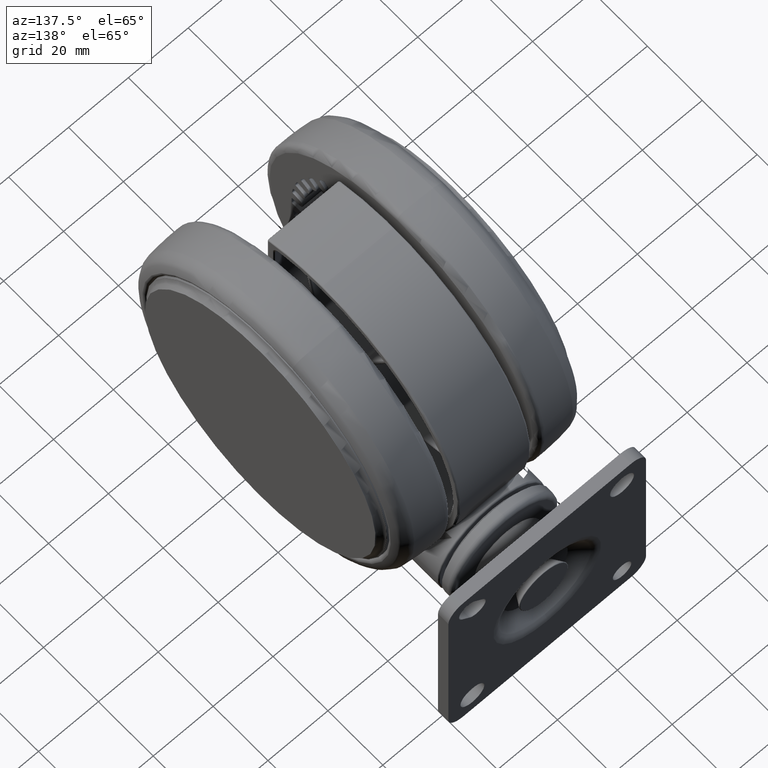
[diagram: clean part render]
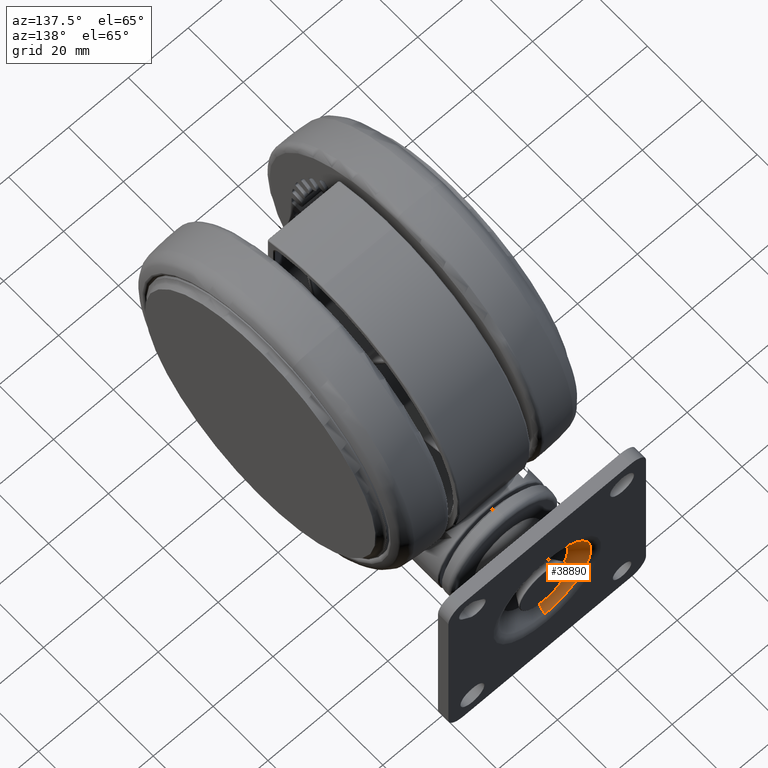
[diagram: same view with one face highlighted and labeled with its STEP entity id]
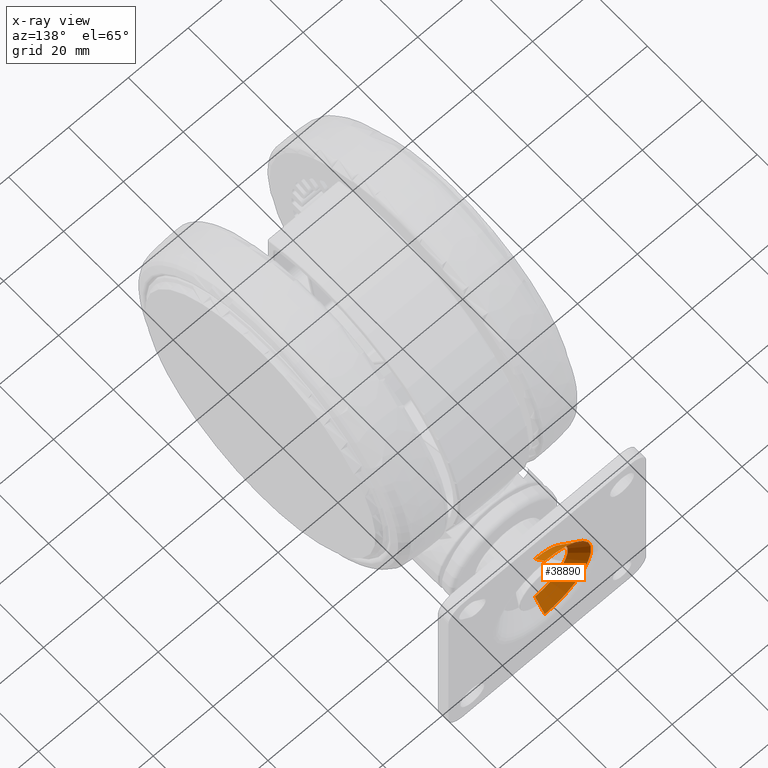
[diagram: x-ray of the same camera — body ghosted, the highlighted face saturated]
A machine part, auxiliary view. The second image highlights one B-rep face of the part: STEP entity #38890.
The next image is the same camera in x-ray: the body ghosted, the highlighted face saturated — about 0% of this face is hidden behind the body in this view.
In plain terms, the highlighted conical surface has half-angle 51.116 deg.
Its self-contained STEP definition (entity closure, byte-faithful):
#2526 = DIRECTION ( 'NONE',  ( 0.6295994207813299100, 0.7769199246716574900, -4.321060395469776300E-017 ) ) ;
#3994 = CARTESIAN_POINT ( 'NONE',  ( 19.95107135689636400, 73.93503246704084100, -32.59999999999990200 ) ) ;
#4444 = CIRCLE ( 'NONE', #41386, 11.00000000000000200 ) ;
#5740 = DIRECTION ( 'NONE',  ( -0.2095320203294542000, 0.9778017858731172800, 3.399077683617266600E-033 ) ) ;
#7235 = CARTESIAN_POINT ( 'NONE',  ( 35.08835106306554500, 77.17878272905694800, -32.59999999999990200 ) ) ;
#8417 = EDGE_LOOP ( 'NONE', ( #26462, #15054, #62826, #73336 ) ) ;
#8828 = LINE ( 'NONE', #69438, #67313 ) ;
#9079 = AXIS2_PLACEMENT_3D ( 'NONE', #3994, #46204, #10092 ) ;
#10092 = DIRECTION ( 'NONE',  ( -0.9778017858731163900, -0.2095320203294575000, 0.0000000000000000000 ) ) ;
#11847 = DIRECTION ( 'NONE',  ( 0.9778017858731171700, 0.2095320203294542300, 0.0000000000000000000 ) ) ;
#15054 = ORIENTED_EDGE ( 'NONE', *, *, #52049, .F. ) ;
#16361 = FACE_OUTER_BOUND ( 'NONE', #8417, .T. ) ;
#20510 = VERTEX_POINT ( 'NONE', #77944 ) ;
#20890 = CARTESIAN_POINT ( 'NONE',  ( 20.70824719430930100, 70.40159693352077900, -32.59999999999990200 ) ) ;
#26462 = ORIENTED_EDGE ( 'NONE', *, *, #31160, .F. ) ;
#26910 = DIRECTION ( 'NONE',  ( 0.9778017858731171700, 0.2095320203294536400, 0.0000000000000000000 ) ) ;
#27572 = AXIS2_PLACEMENT_3D ( 'NONE', #47940, #5740, #11847 ) ;
#27963 = CIRCLE ( 'NONE', #9079, 15.48092867579747900 ) ;
#29244 = VERTEX_POINT ( 'NONE', #7235 ) ;
#31160 = EDGE_CURVE ( 'NONE', #20510, #44118, #8828, .T. ) ;
#33206 = DIRECTION ( 'NONE',  ( -0.8926678995104565500, 0.4507150110475457400, -5.211749976610404500E-017 ) ) ;
#38669 = VECTOR ( 'NONE', #2526, 1000.000000000000100 ) ;
#38890 = ADVANCED_FACE ( 'NONE', ( #16361 ), #76817, .F. ) ;
#41386 = AXIS2_PLACEMENT_3D ( 'NONE', #20890, #63108, #26910 ) ;
#43771 = EDGE_CURVE ( 'NONE', #29244, #44118, #27963, .T. ) ;
#44118 = VERTEX_POINT ( 'NONE', #56201 ) ;
#46204 = DIRECTION ( 'NONE',  ( -0.2095320203294576100, 0.9778017858731165000, 1.972152263052530000E-031 ) ) ;
#47940 = CARTESIAN_POINT ( 'NONE',  ( 19.76535310282674400, 74.80170496994986700, -32.59999999999990200 ) ) ;
#48667 = CARTESIAN_POINT ( 'NONE',  ( 31.46406683891359200, 72.70644915714476000, -32.59999999999990200 ) ) ;
#52049 = EDGE_CURVE ( 'NONE', #60912, #20510, #4444, .T. ) ;
#56201 = CARTESIAN_POINT ( 'NONE',  ( 4.813791650727317500, 70.69128220502477700, -32.59999999999990200 ) ) ;
#56647 = LINE ( 'NONE', #62973, #38669 ) ;
#60912 = VERTEX_POINT ( 'NONE', #48667 ) ;
#62826 = ORIENTED_EDGE ( 'NONE', *, *, #63602, .T. ) ;
#62973 = CARTESIAN_POINT ( 'NONE',  ( 35.97730671260303100, 78.27574586701221900, -32.59999999999990200 ) ) ;
#63108 = DIRECTION ( 'NONE',  ( -0.2095320203294542000, 0.9778017858731172800, 3.399077683617266600E-033 ) ) ;
#63602 = EDGE_CURVE ( 'NONE', #60912, #29244, #56647, .T. ) ;
#67313 = VECTOR ( 'NONE', #33206, 1000.000000000000200 ) ;
#69438 = CARTESIAN_POINT ( 'NONE',  ( 3.553399493050456700, 71.32766407288751500, -32.59999999999990200 ) ) ;
#73336 = ORIENTED_EDGE ( 'NONE', *, *, #43771, .T. ) ;
#76817 = CONICAL_SURFACE ( 'NONE', #27572, 16.58000000000000900, 0.8921338360465758100 ) ;
#77944 = CARTESIAN_POINT ( 'NONE',  ( 9.952427549704999900, 68.09674470989676800, -32.59999999999990200 ) ) ;